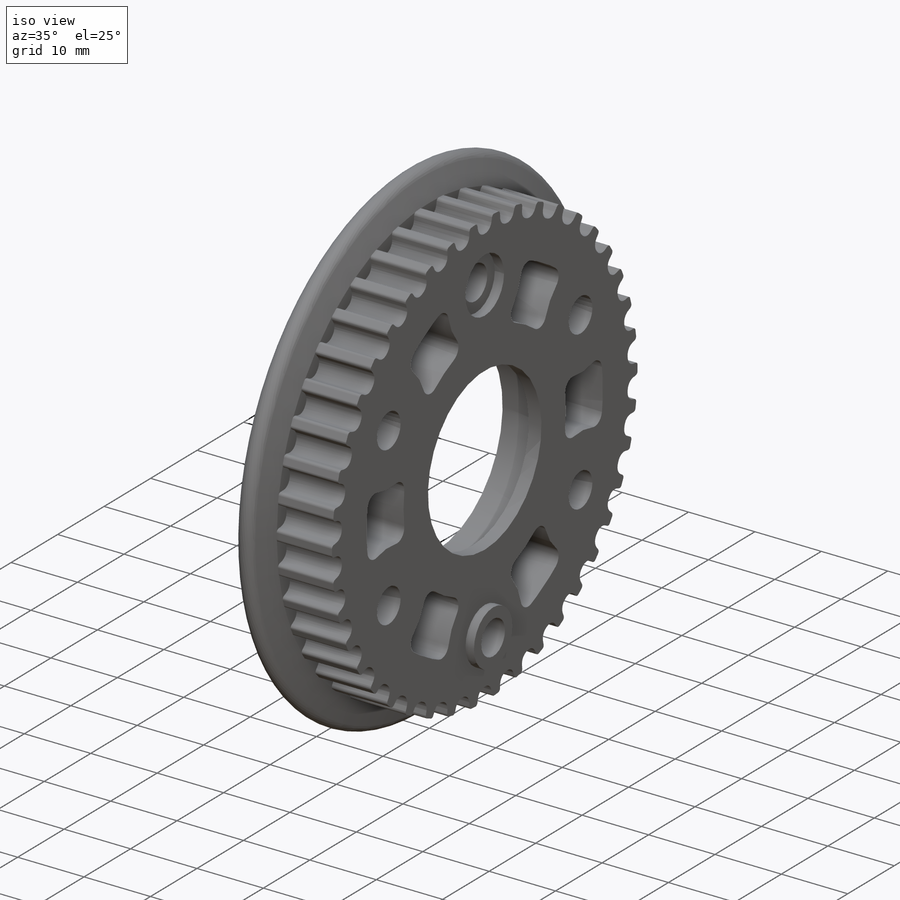
[diagram: iso view]
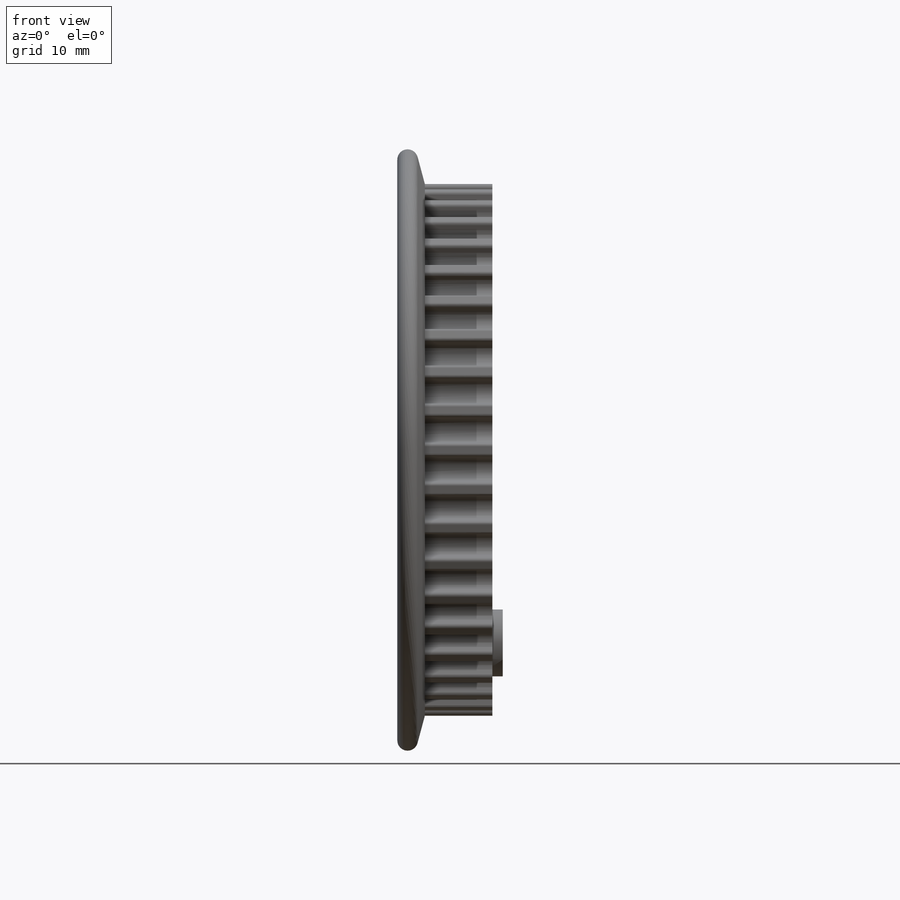
[diagram: front view]
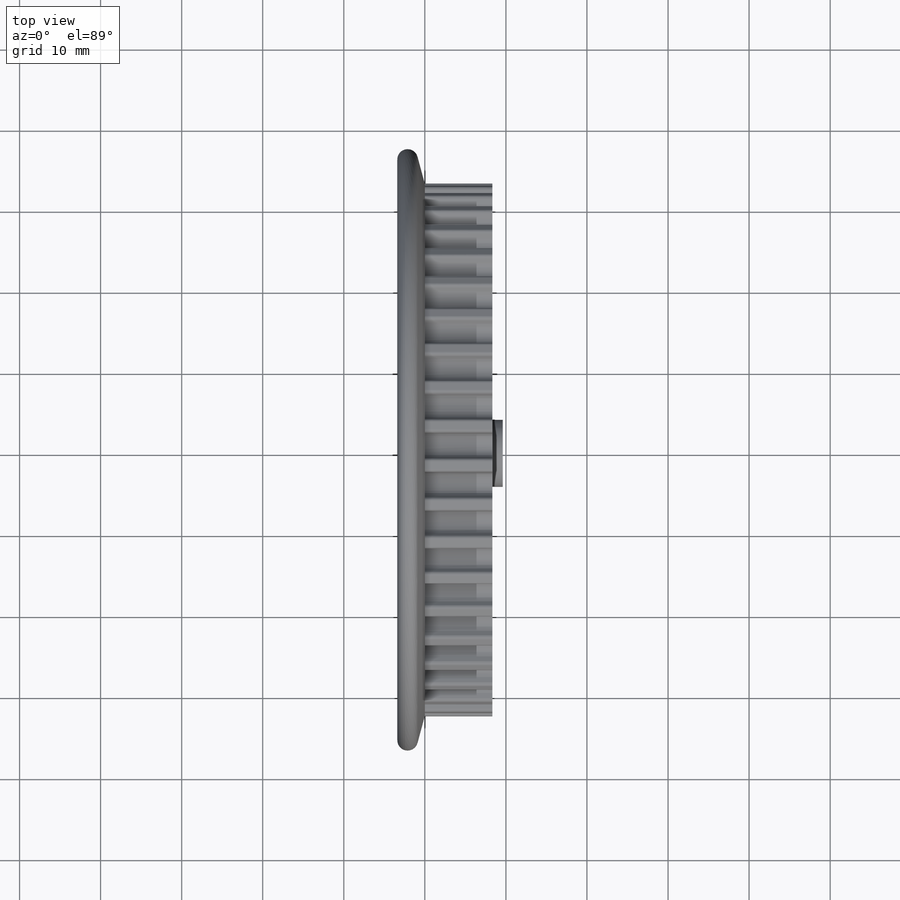
[diagram: top view]
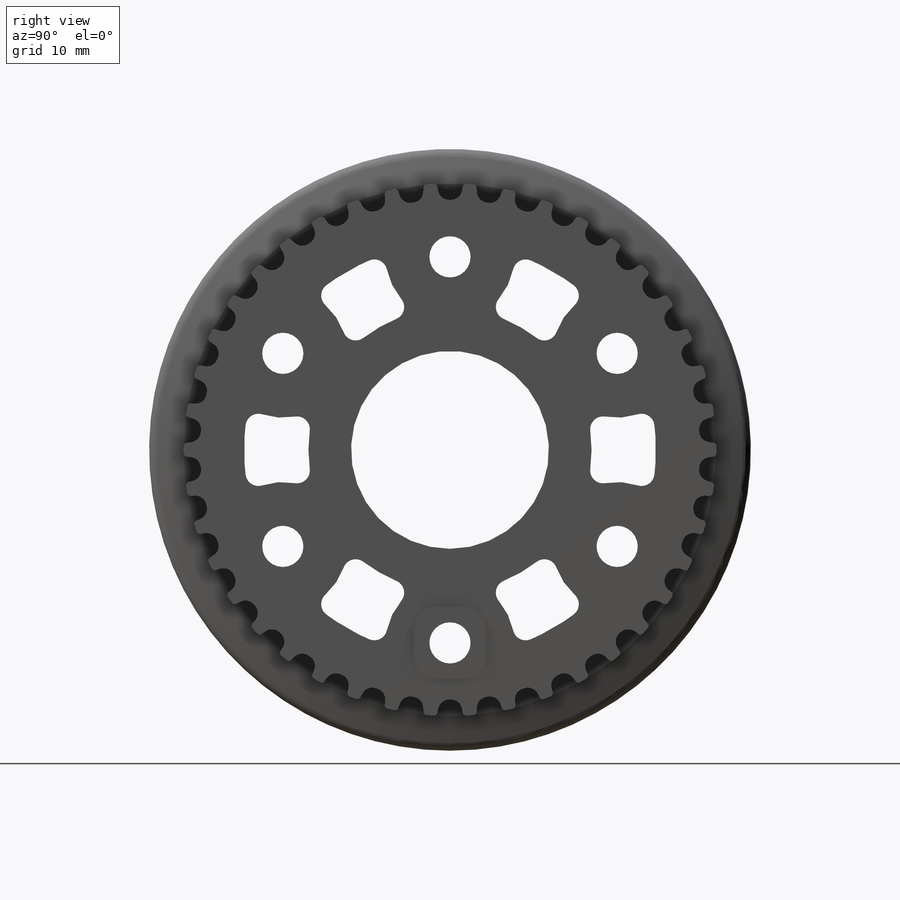
[diagram: right view]
SOLIDWORKS PART (.sldprt)
format: sldprt  version: not decoded by parser v0  size: 1,467,904 bytes
history: native  units: mm
features: sketch x9, cut_extrude x6, extrude x2, pattern_circular x2, fillet x2, material x1, revolve x1 (+13 scaffold rows collapsed)
feature tree (36):
  scaffold x13  (default folders/planes/origin — collapsed)
  material  "PC High Viscosity"
  sketch  "Sketch1"  dims[c1.D1=~65.718944mm c1.D18=~1.371092mm c1.D19=~0.44196mm c1.D20=~1.74498mm c1.D21=2.8448mm c1.D22=2.2733mm c1.D23=~0.77216mm c1.D24=~0.43942mm c1.D25=~1.010158mm c2.D23=70.0278mm c2.D17=35.0139mm c3.D23=68.8848mm c3.D2=2.032mm c3.D3=~0.08382mm c3.D4=~1.15316mm c3.D5=~1.56718mm c3.D6=~1.19126mm c3.D7=1.524mm c3.D8=~1.44018mm c3.D9=~1.03124mm c3.D10=~1.55448mm c3.D11=0.4826mm c3.D12=~1.56972mm c3.D13=0.3937mm c3.D14=~1.66878mm c3.D15=0.2159mm c3.D16=~2.00406mm c3.D17=~34.35471mm c4.D17=~8.181818deg c5.D17=~4.995726mm c5.D23=0.5715mm c5.D24=~4.995341mm c6.D17=5.0mm c6.D24=5.0mm c7.D17=5.0mm]
  extrude  "Boss-Extrude1"  Depth=8.3312mm
  pattern_circular  "CirPattern3"  Count=42 Angle=360deg
  sketch  "Sketch2"  dims[c1.D4=3.175mm c1.D1=4.7625mm c1.D2=2.54mm c1.D3=9.9187mm c2.D3=105.0deg c2.D4=2.54mm]
  revolve  "Revolve1"  Angle=360deg
  sketch  "Sketch3"  dims[D1=24.4094mm D2=5.08mm D3=23.8125mm D4=6.0]
  cut_extrude  "Cut-Extrude1"  [1 undecoded]
  fillet  "Fillet1"  Radius=1.27mm
  sketch  "Sketch4"  dims[D1=50.8mm]
  cut_extrude  "Cut-Extrude2"  Depth=3.556mm
  sketch  "Sketch5"  dims[D1=28.575mm]
  cut_extrude  "Cut-Extrude3"  Depth=5.3975mm
  sketch  "Sketch6"  dims[D1=15.875mm D2=3.175mm]
  cut_extrude  "Cut-Extrude4"  [1 undecoded]
  pattern_circular  "CirPattern2"  Count=6 Angle=360deg
  fillet  "Fillet3"  Radius=1.5875mm
  sketch  "Sketch7"  dims[D1=1.5875mm]
  extrude  "Boss-Extrude2"  Depth=1.27mm
  sketch  "Sketch8"  dims[D1=8.3058mm]
  cut_extrude  "Cut-Extrude5"  Depth=1.397mm
  sketch  "Sketch10"  dims[D1=11.1125mm]
  cut_extrude  "Cut-Extrude7"  [1 undecoded]
decode coverage: 19 of 22 modeling features carry decoded parameters
note: ~ marks probable driven/reference dimensions
note: 3 parameter values undecoded
summary: no parameter record found for 3 features
note: suppression state not decoded; provenance and decode notes live in map.json
